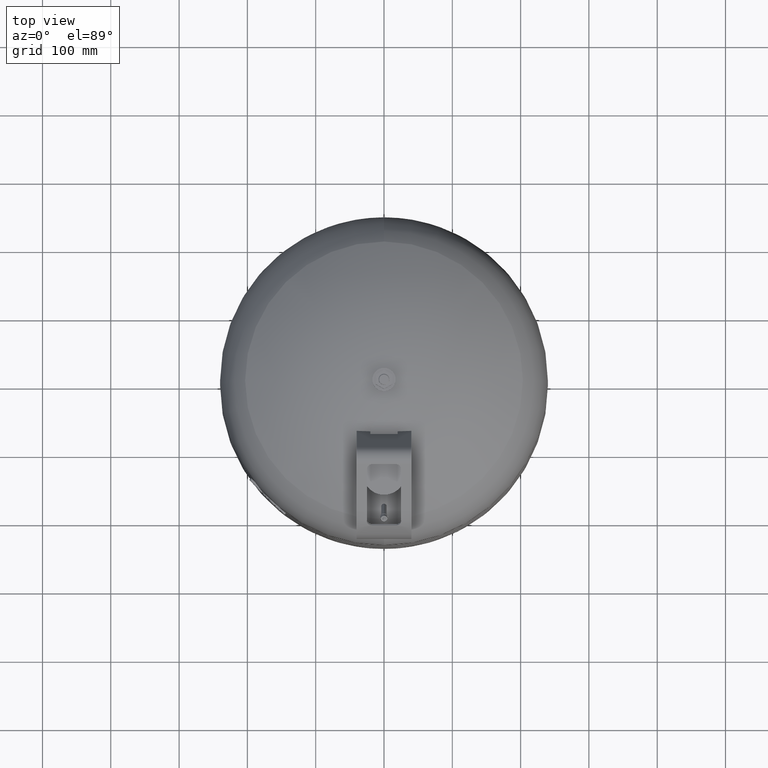
[diagram: clean part render]
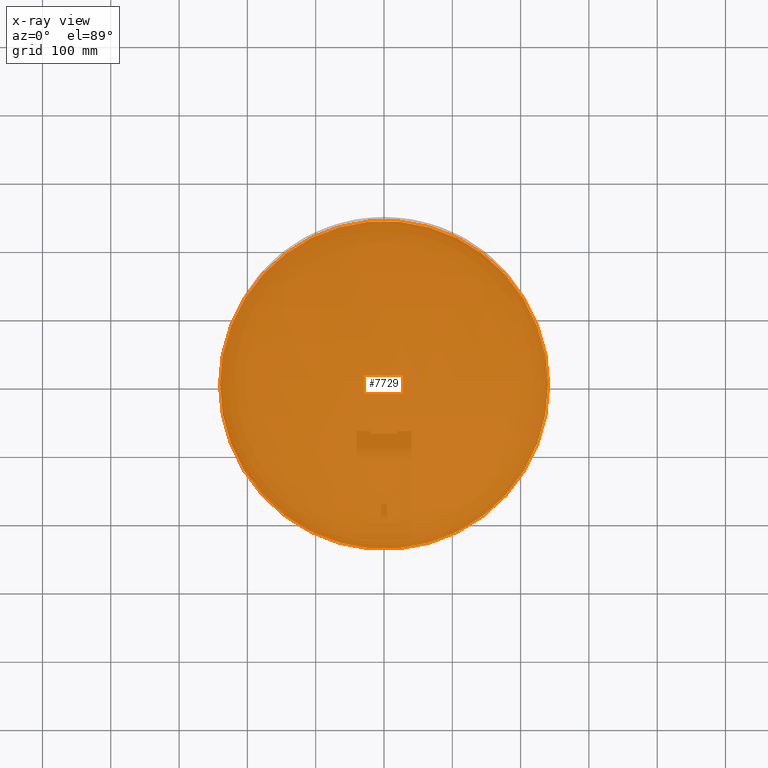
[diagram: x-ray — body ghosted, one internal face saturated and labeled with its STEP entity id]
A machine part, top view, then the same camera in x-ray: the body is ghosted and one INTERNAL B-rep face — a face not visible from any outside direction — is saturated and labeled: STEP entity #7729.
In plain terms, the highlighted planar face has unit normal (0, 0, 1).
Its self-contained STEP definition (entity closure, byte-faithful):
#7567=CARTESIAN_POINT('',(-240.0,0.0,324.0));
#7568=VERTEX_POINT('',#7567);
#7577=CARTESIAN_POINT('',(240.0,2.939055E-014,324.0));
#7578=VERTEX_POINT('',#7577);
#7579=CARTESIAN_POINT('',(0.0,0.0,324.0));
#7580=DIRECTION('',(0.0,0.0,1.0));
#7581=DIRECTION('',(-1.0,0.0,0.0));
#7582=AXIS2_PLACEMENT_3D('',#7579,#7580,#7581);
#7583=CIRCLE('',#7582,240.0);
#7584=EDGE_CURVE('',#7578,#7568,#7583,.T.);
#7710=CARTESIAN_POINT('',(0.0,0.0,324.0));
#7711=DIRECTION('',(0.0,0.0,1.0));
#7712=DIRECTION('',(-1.0,0.0,0.0));
#7713=AXIS2_PLACEMENT_3D('',#7710,#7711,#7712);
#7714=CIRCLE('',#7713,240.0);
#7715=EDGE_CURVE('',#7568,#7578,#7714,.T.);
#7720=CARTESIAN_POINT('',(-119.999999999999990,0.0,324.0));
#7721=DIRECTION('',(0.0,0.0,1.0));
#7722=DIRECTION('',(0.0,-1.0,0.0));
#7723=AXIS2_PLACEMENT_3D('',#7720,#7721,#7722);
#7724=PLANE('',#7723);
#7725=ORIENTED_EDGE('',*,*,#7715,.T.);
#7726=ORIENTED_EDGE('',*,*,#7584,.T.);
#7727=EDGE_LOOP('',(#7725,#7726));
#7728=FACE_OUTER_BOUND('',#7727,.T.);
#7729=ADVANCED_FACE('',(#7728),#7724,.T.);